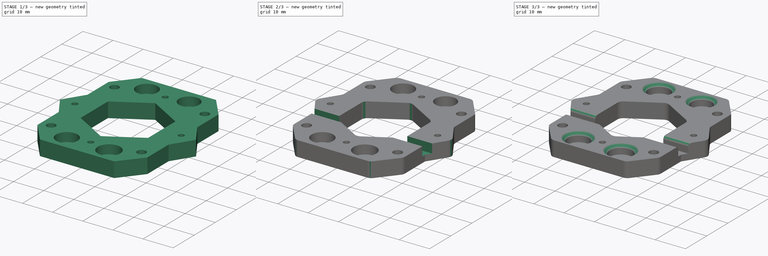
[diagram: build sequence overview — one tinted view per stage of 3, left to right]
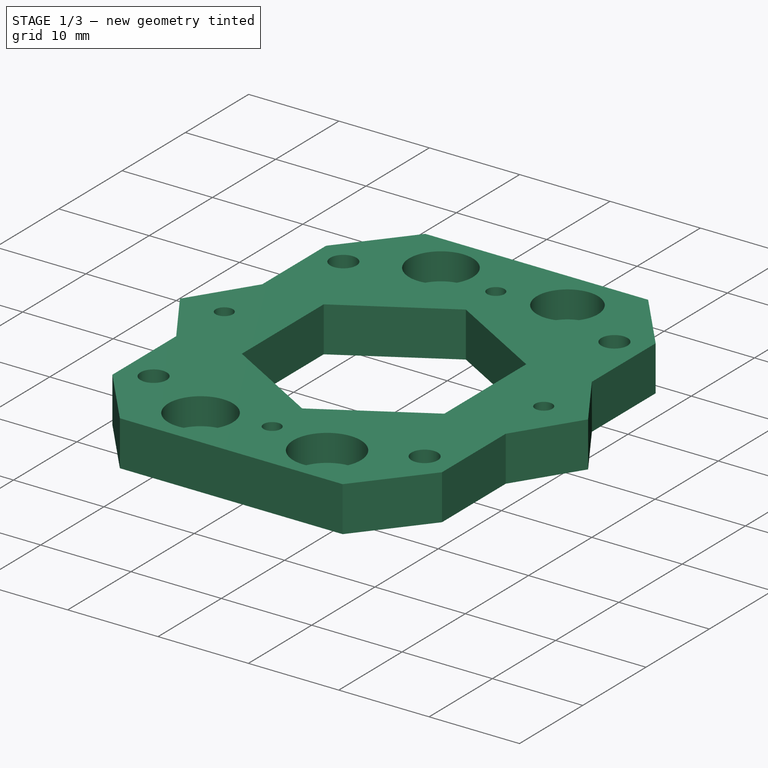
[diagram: stage 1 of 3 — iso view after this stage's code; geometry added in this stage tinted green]
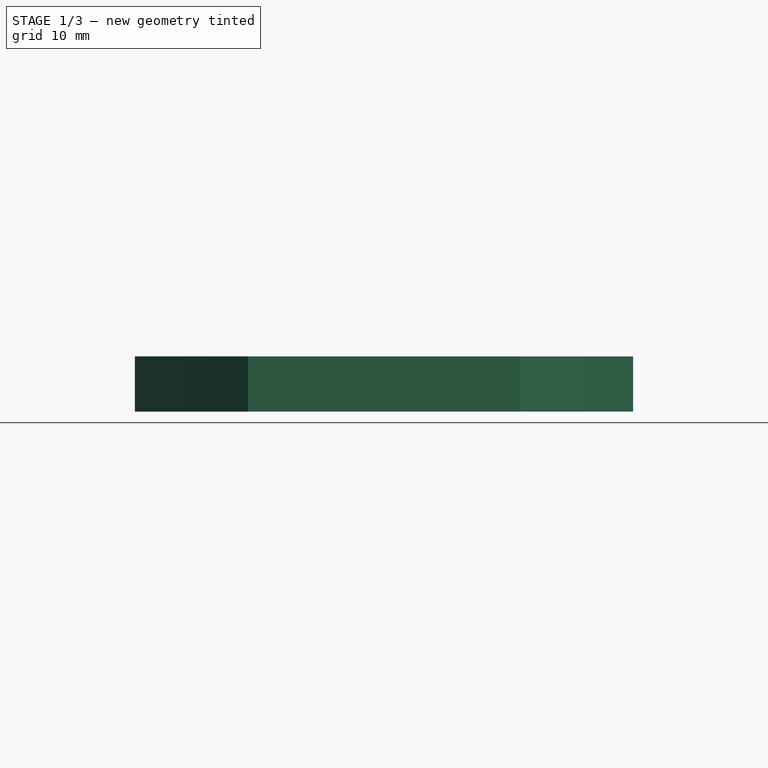
[diagram: stage 1 of 3 — front view after this stage's code; geometry added in this stage tinted green]
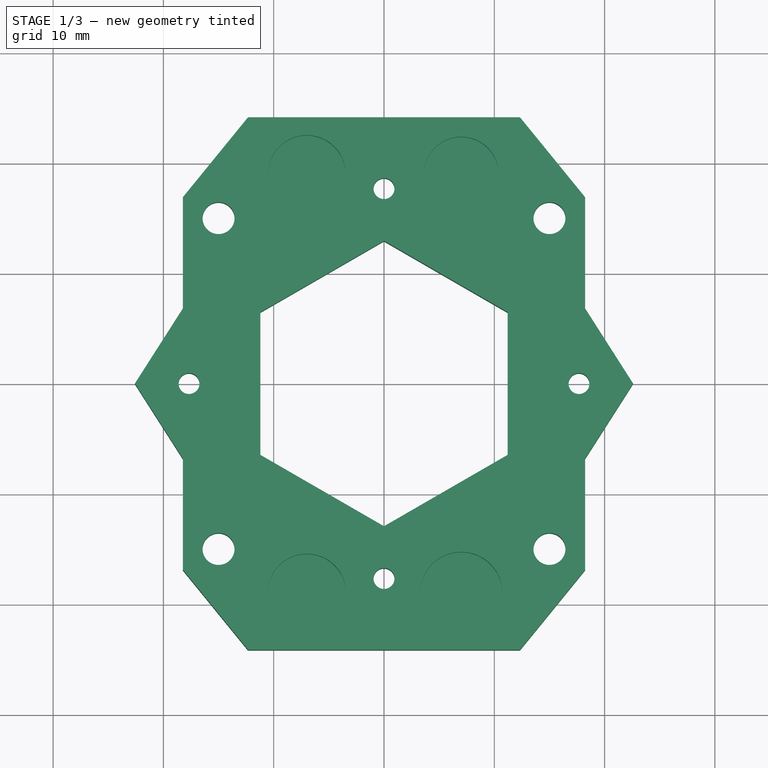
[diagram: stage 1 of 3 — top view after this stage's code; geometry added in this stage tinted green]
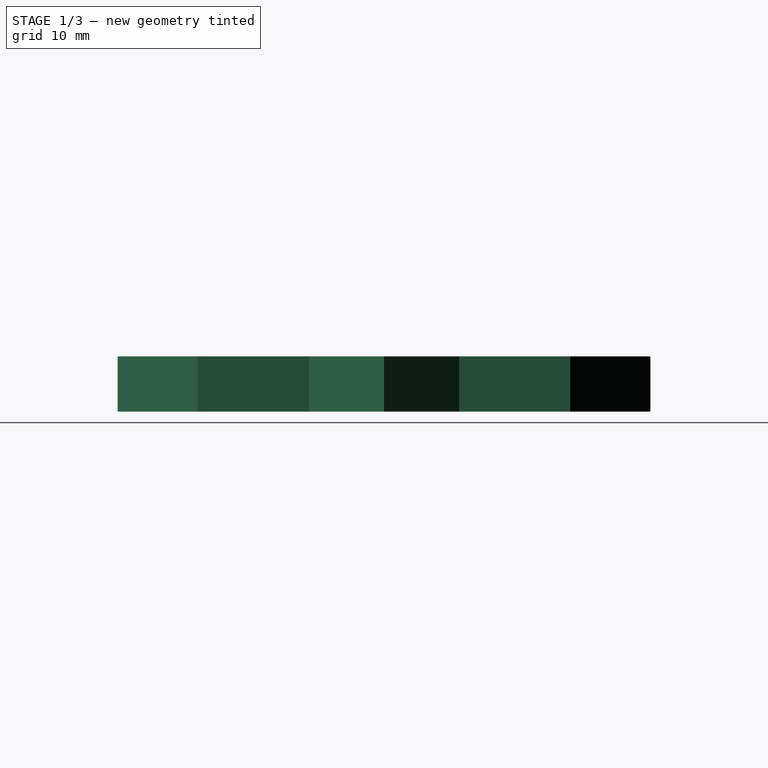
[diagram: stage 1 of 3 — right view after this stage's code; geometry added in this stage tinted green]
FCSTD DOCUMENT  (FreeCAD 0.19R24267 +99 (Git))
Label: 飞控30转20
License: All rights reserved
LicenseURL: http://en.wikipedia.org/wiki/All_rights_reserved
objects: Sketcher::SketchObject×3, PartDesign::Fillet×3, PartDesign::Pocket×2, Image::ImagePlane×1, PartDesign::Pad×1, PartDesign::Chamfer×1, PartDesign::Body×1
note: 18 computed .brp shape members not serialized (recipe doc carries the construction recipe); baked Part::Feature solids carry a one-line shape summary decoded from their .brp

FEATURE [Sketcher::SketchObject] Sketch
  FullyConstrained = false
  MapMode = 5
  Support = -> [XY_Plane]
  sketch-geometry (39):
    g0: LineSegment StartX=-15 StartY=15 StartZ=0 EndX=15 EndY=15 EndZ=0
    g1: LineSegment StartX=15 StartY=15 StartZ=0 EndX=15 EndY=-15 EndZ=0
    g2: LineSegment StartX=15 StartY=-15 StartZ=0 EndX=-15 EndY=-15 EndZ=0
    g3: LineSegment StartX=-15 StartY=-15 StartZ=0 EndX=-15 EndY=15 EndZ=0
    g4: LineSegment StartX=0 StartY=17.6777 StartZ=0 EndX=-17.6777 EndY=0 EndZ=0
    g5: LineSegment StartX=-17.6777 StartY=0 StartZ=0 EndX=0 EndY=-17.6777 EndZ=0
    g6: LineSegment StartX=17.6777 StartY=0 StartZ=0 EndX=0 EndY=-17.6777 EndZ=0
    g7: LineSegment StartX=0 StartY=17.6777 StartZ=0 EndX=17.6777 EndY=0 EndZ=0
    g8: Circle CenterX=-15 CenterY=15 CenterZ=0 NormalX=0 NormalY=0 NormalZ=1 AngleXU=0 Radius=1.45
    g9: Circle CenterX=0 CenterY=17.6777 CenterZ=0 NormalX=0 NormalY=0 NormalZ=1 AngleXU=0 Radius=0.95
    g10: Circle CenterX=15 CenterY=15 CenterZ=0 NormalX=0 NormalY=0 NormalZ=1 AngleXU=0 Radius=1.45
    g11: Circle CenterX=15 CenterY=-15 CenterZ=0 NormalX=0 NormalY=0 NormalZ=1 AngleXU=0 Radius=1.45
    g12: Circle CenterX=-15 CenterY=-15 CenterZ=0 NormalX=0 NormalY=0 NormalZ=1 AngleXU=0 Radius=1.45
    g13: Circle CenterX=0 CenterY=-17.6777 CenterZ=0 NormalX=0 NormalY=0 NormalZ=1 AngleXU=0 Radius=0.95
    g14: Circle CenterX=-17.6777 CenterY=0 CenterZ=0 NormalX=0 NormalY=0 NormalZ=1 AngleXU=0 Radius=0.95
    g15: Circle CenterX=17.6777 CenterY=0 CenterZ=0 NormalX=0 NormalY=0 NormalZ=1 AngleXU=0 Radius=0.95
    g16: LineSegment StartX=-22.5862 StartY=0 StartZ=0 EndX=-18.2399 EndY=6.8041 EndZ=0
    g17: LineSegment StartX=-18.2399 StartY=6.8041 StartZ=0 EndX=-18.2399 EndY=16.8877 EndZ=0
    g18: LineSegment StartX=-18.2399 StartY=16.8877 StartZ=0 EndX=-12.3288 EndY=24.1434 EndZ=0
    g19: LineSegment StartX=-12.3288 StartY=24.1434 StartZ=0 EndX=0 EndY=24.1434 EndZ=0
    g20: LineSegment StartX=12.3288 StartY=24.1434 StartZ=0 EndX=0 EndY=24.1434 EndZ=0
    g21: LineSegment StartX=18.2399 StartY=16.8877 StartZ=0 EndX=12.3288 EndY=24.1434 EndZ=0
    g22: LineSegment StartX=18.2399 StartY=6.8041 StartZ=0 EndX=18.2399 EndY=16.8877 EndZ=0
    g23: LineSegment StartX=22.5862 StartY=0 StartZ=0 EndX=18.2399 EndY=6.8041 EndZ=0
    g24: LineSegment StartX=-22.5862 StartY=0 StartZ=0 EndX=-18.2399 EndY=-6.8041 EndZ=0
    g25: LineSegment StartX=-18.2399 StartY=-6.8041 StartZ=0 EndX=-18.2399 EndY=-16.8877 EndZ=0
    g26: LineSegment StartX=-18.2399 StartY=-16.8877 StartZ=0 EndX=-12.3288 EndY=-24.1483 EndZ=0
    g27: LineSegment StartX=-12.3288 StartY=-24.1483 StartZ=0 EndX=0.02983 EndY=-24.1483 EndZ=0
    g28: LineSegment StartX=12.3288 StartY=-24.1483 StartZ=0 EndX=0.02983 EndY=-24.1483 EndZ=0
    g29: LineSegment StartX=18.2399 StartY=-16.8877 StartZ=0 EndX=12.3288 EndY=-24.1483 EndZ=0
    g30: LineSegment StartX=18.2399 StartY=-6.8041 StartZ=0 EndX=18.2399 EndY=-16.8877 EndZ=0
    g31: LineSegment StartX=22.5862 StartY=0 StartZ=0 EndX=18.2399 EndY=-6.8041 EndZ=0
    g32: LineSegment StartX=11.2072 StartY=-6.47048 StartZ=0 EndX=11.2072 EndY=6.47048 EndZ=0
    g33: LineSegment StartX=11.2072 StartY=6.47048 StartZ=0 EndX=-2.13e-14 EndY=12.941 EndZ=0
    g34: LineSegment StartX=-2.13e-14 StartY=12.941 StartZ=0 EndX=-11.2072 EndY=6.47048 EndZ=0
    g35: LineSegment StartX=-11.2072 StartY=6.47048 StartZ=0 EndX=-11.2072 EndY=-6.47048 EndZ=0
    g36: LineSegment StartX=-11.2072 StartY=-6.47048 StartZ=0 EndX=1.95e-14 EndY=-12.941 EndZ=0
    g37: LineSegment StartX=1.95e-14 StartY=-12.941 StartZ=0 EndX=11.2072 EndY=-6.47048 EndZ=0
    g38: Circle CenterX=0 CenterY=0 CenterZ=0 NormalX=0 NormalY=0 NormalZ=1 AngleXU=0 Radius=12.941
  constraints (79):
    c: Coincident(g0,g1)
    c: Coincident(g1,g2)
    c: Coincident(g2,g3)
    c: Coincident(g3,g0)
    c: Horizontal(g0)
    c: Horizontal(g2)
    c: Vertical(g1)
    c: Vertical(g3)
    c: Equal(g0,g3)
    c: DistanceX(g-2,g0) = -15
    c: DistanceY(g-1,g0) = 15
    c: Distance(g0) = 30
    c: PointOnObject(g4,g-2)
    c: Coincident(g5,g4)
    c: PointOnObject(g5,g-2)
    c: PointOnObject(g6,g-1)
    c: Coincident(g6,g5)
    c: Coincident(g7,g4)
    c: Coincident(g7,g6)
    c: PointOnObject(g4,g-1)
    c: Perpendicular(g6,g7)
    c: Distance(g7) = 25
    c: Equal(g4,g7)
    c: Equal(g7,g5)
    c: Coincident(g8,g0)
    c: Coincident(g9,g4)
    c: Coincident(g10,g0)
    c: Coincident(g11,g1)
    c: Coincident(g12,g2)
    c: Coincident(g13,g5)
    c: Coincident(g14,g4)
    c: Coincident(g15,g6)
    c: Equal(g8,g10)
    c: Equal(g10,g12)
    c: Equal(g12,g11)
    c: Diameter(g8) = 2.9
    c: Equal(g9,g14)
    c: Equal(g14,g15)
    c: Equal(g15,g13)
    c: Diameter(g13) = 1.9
    c: PointOnObject(g16,g-1)
    c: Coincident(g16,g17)
    c: Vertical(g17)
    c: Coincident(g17,g18)
    c: Coincident(g18,g19)
    c: PointOnObject(g19,g-2)
    c: Horizontal(g19)
    c: Coincident(g23,g22)
    c: Vertical(g22)
    c: Coincident(g22,g21)
    c: Coincident(g21,g20)
    c: Horizontal(g20)
    c: Coincident(g24,g25)
    c: Vertical(g25)
    c: Coincident(g25,g26)
    c: Coincident(g26,g27)
    c: Horizontal(g27)
    c: Coincident(g31,g30)
    c: Vertical(g30)
    c: Coincident(g30,g29)
    c: Coincident(g29,g28)
    c: Horizontal(g28)
    c: Coincident(g32,g33)
    c: Coincident(g33,g34)
    c: Coincident(g34,g35)
    c: Coincident(g35,g36)
    c: Coincident(g36,g37)
    c: Coincident(g37,g32)
    c: Equal(g32, g33-g37) x5
    c: PointOnObject(g32,g38)
    c: PointOnObject(g33,g38)
    c: PointOnObject(g34,g38)
    c: PointOnObject(g35,g38)
    c: PointOnObject(g36,g38)
    c: PointOnObject(g37,g38)
    c: PointOnObject(g37,g6)
    c: Parallel(g32,g-2)
    c: Coincident(g19,g20)
    c: Coincident(g27,g28)
FEATURE [Image::ImagePlane] ImagePlane
  Placement = pos=(-2.7,8.5,0) rot=(0,0,-1;0.059341rad)
  XSize = 138.448
  YSize = 184.779
FEATURE [PartDesign::Pad] Pad
  Direction = (1,1,1)
  Length = 5
  Length2 = 100
  Profile = -> Sketch
  Type = 0
FEATURE [Sketcher::SketchObject] Sketch001
  FullyConstrained = false
  MapMode = 5
  Placement = pos=(0,0,5) rot=(0,0,1;0rad)
  Support = -> [Pad]
  sketch-geometry (6):
    g0: Circle CenterX=-7 CenterY=-19 CenterZ=0 NormalX=0 NormalY=0 NormalZ=1 AngleXU=0 Radius=3.56203
    g1: Circle CenterX=7 CenterY=-19 CenterZ=0 NormalX=0 NormalY=0 NormalZ=1 AngleXU=0 Radius=3.73192
    g2: Circle CenterX=-7 CenterY=19 CenterZ=0 NormalX=0 NormalY=0 NormalZ=1 AngleXU=0 Radius=3.52027
    g3: Circle CenterX=7 CenterY=19 CenterZ=0 NormalX=0 NormalY=0 NormalZ=1 AngleXU=0 Radius=3.38043
    g4: LineSegment StartX=-7 StartY=19 StartZ=0 EndX=0 EndY=0 EndZ=0
    g5: LineSegment StartX=0 StartY=0 StartZ=0 EndX=7 EndY=-19 EndZ=0
  constraints (12):
    c: Distance(g2,g0) = 38
    c: Distance(g1,g3) = 38
    c: Distance(g2,g3) = 14
    c: Distance(g0,g1) = 14
    c: Horizontal(g2,g3)
    c: Vertical(g3,g1)
    c: Coincident(g4,g2)
    c: Coincident(g4,g-1)
    c: Coincident(g5,g-1)
    c: Coincident(g5,g1)
    c: Equal(g5,g4)
    c: Parallel(g4,g5)
FEATURE [PartDesign::Pocket] Pocket
  BaseFeature = -> Pad
  Length = 3
  Length2 = 100
  Profile = -> Sketch001
  Type = 0
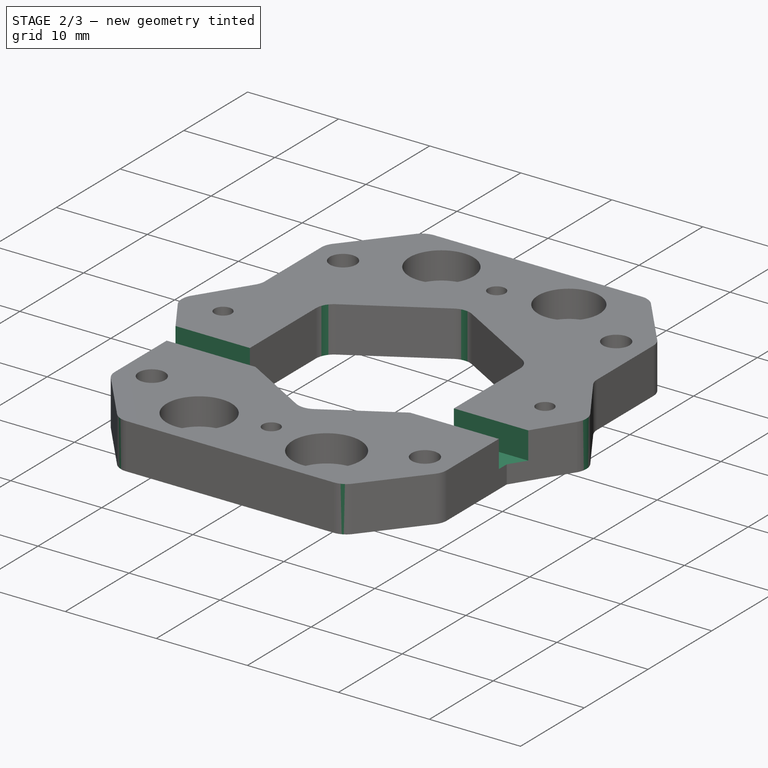
[diagram: stage 2 of 3 — iso view after this stage's code; geometry added in this stage tinted green]
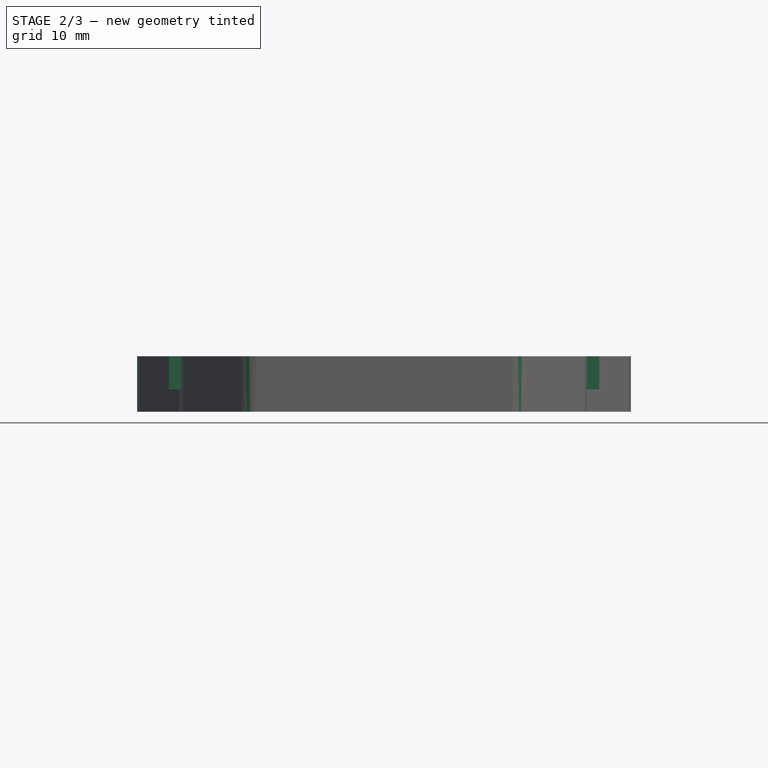
[diagram: stage 2 of 3 — front view after this stage's code; geometry added in this stage tinted green]
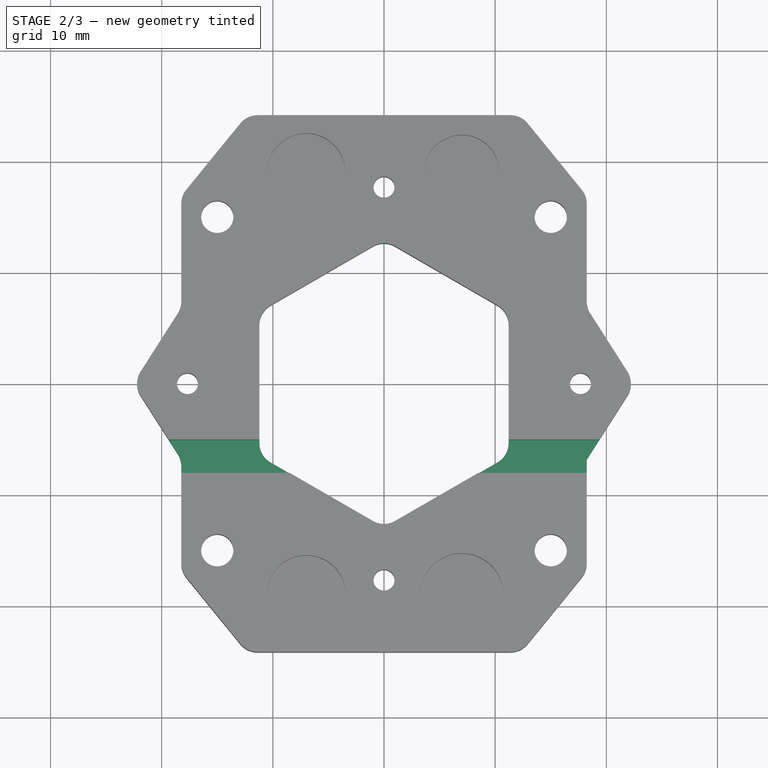
[diagram: stage 2 of 3 — top view after this stage's code; geometry added in this stage tinted green]
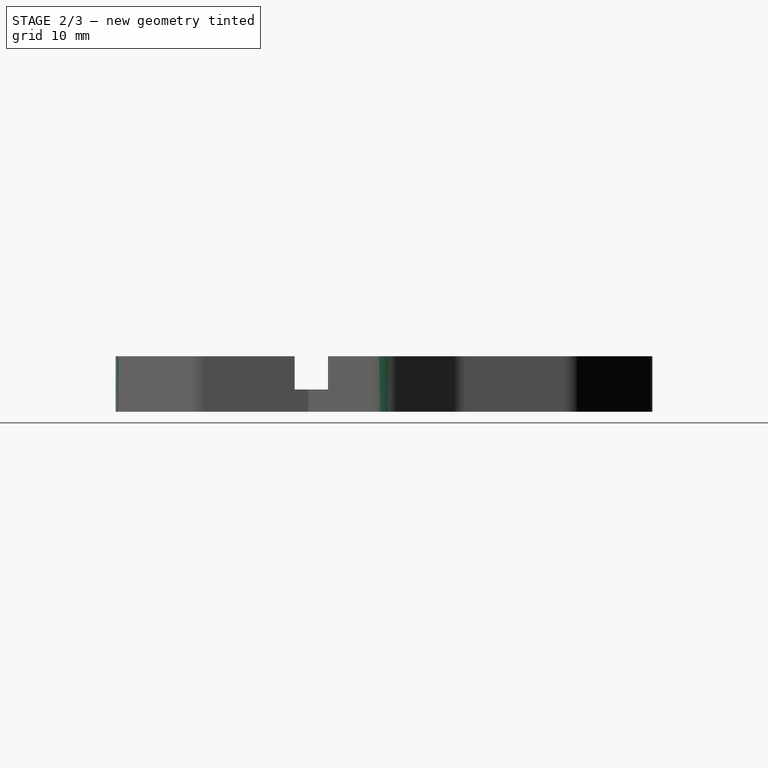
[diagram: stage 2 of 3 — right view after this stage's code; geometry added in this stage tinted green]
FEATURE [Sketcher::SketchObject] Sketch002
  FullyConstrained = false
  MapMode = 5
  Placement = pos=(0,0,5) rot=(0,0,1;0rad)
  Support = -> [Pocket]
  sketch-geometry (4):
    g0: LineSegment StartX=-23.1579 StartY=-5.04127 StartZ=0 EndX=23.5584 EndY=-5.04127 EndZ=0
    g1: LineSegment StartX=23.5584 StartY=-5.04127 StartZ=0 EndX=23.5584 EndY=-8.04127 EndZ=0
    g2: LineSegment StartX=23.5584 StartY=-8.04127 StartZ=0 EndX=-23.1579 EndY=-8.04127 EndZ=0
    g3: LineSegment StartX=-23.1579 StartY=-8.04127 StartZ=0 EndX=-23.1579 EndY=-5.04127 EndZ=0
  constraints (9):
    c: Coincident(g0,g1)
    c: Coincident(g1,g2)
    c: Coincident(g2,g3)
    c: Coincident(g3,g0)
    c: Horizontal(g0)
    c: Horizontal(g2)
    c: Vertical(g1)
    c: Vertical(g3)
    c: Distance(g3) = 3
FEATURE [PartDesign::Pocket] Pocket001
  BaseFeature = -> Pocket
  Length = 3
  Length2 = 100
  Profile = -> Sketch002
  Type = 0
FEATURE [PartDesign::Fillet] Fillet
  Base = -> Pocket001 [Edge74,Edge1,Edge78,Edge82,Edge86,Edge60,Edge10,Edge2,Edge6,Edge69,Edge71,Edge72,Edge73]
  BaseFeature = -> Pocket001
  Radius = 2
  SupportTransform = false
FEATURE [PartDesign::Fillet] Fillet001
  Base = -> Fillet [Edge126,Edge132,Edge123,Edge127,Edge128,Edge129]
  BaseFeature = -> Fillet
  Radius = 2
  SupportTransform = false
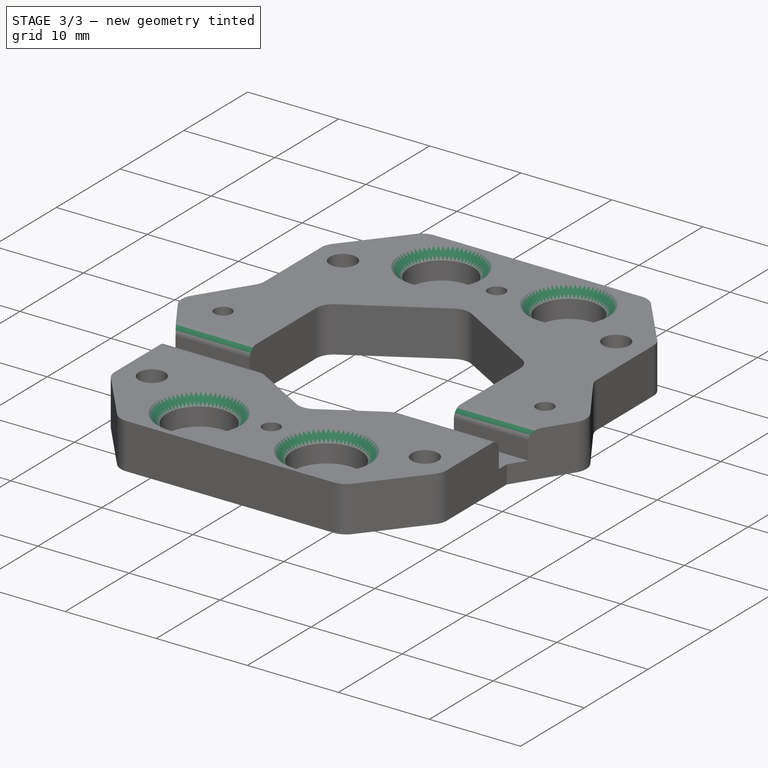
[diagram: stage 3 of 3 — iso view after this stage's code; geometry added in this stage tinted green]
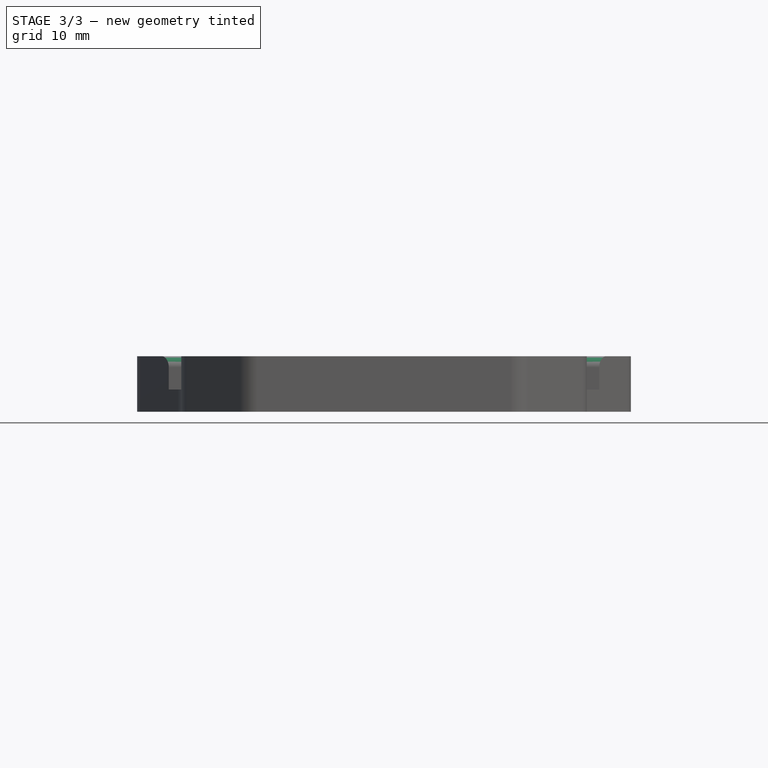
[diagram: stage 3 of 3 — front view after this stage's code; geometry added in this stage tinted green]
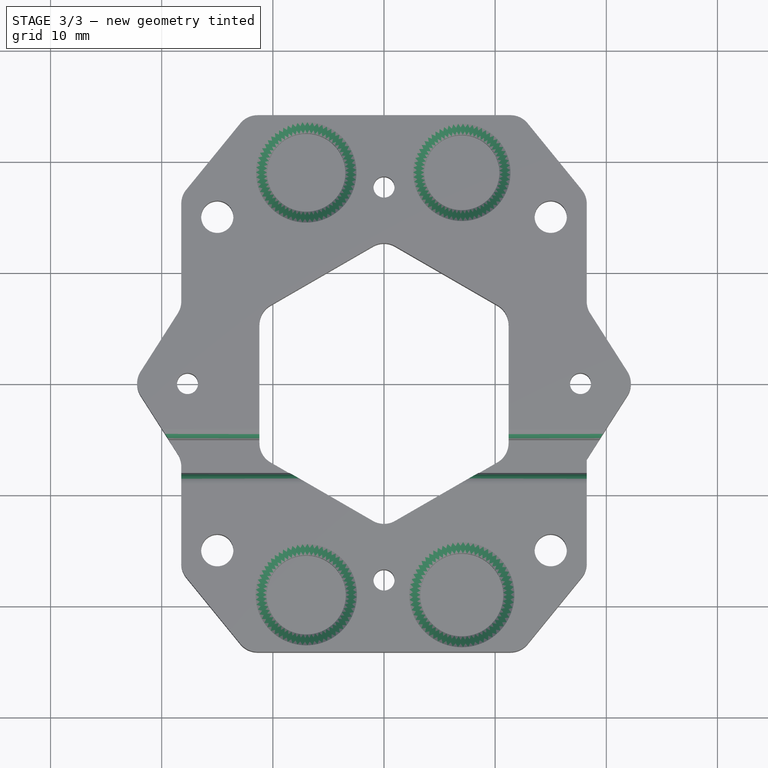
[diagram: stage 3 of 3 — top view after this stage's code; geometry added in this stage tinted green]
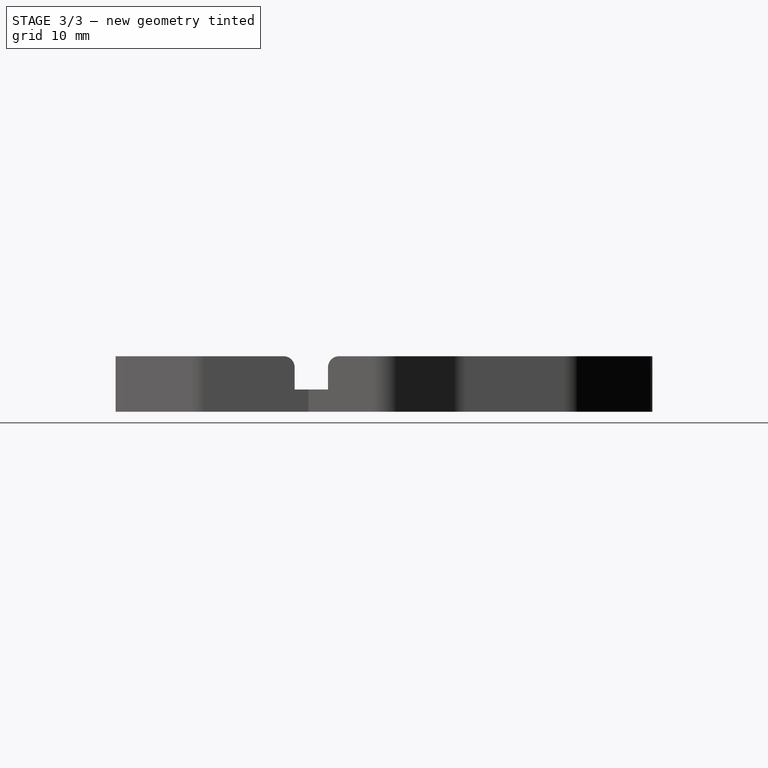
[diagram: stage 3 of 3 — right view after this stage's code; geometry added in this stage tinted green]
FEATURE [PartDesign::Fillet] Fillet002
  Base = -> Fillet001 [Edge167,Edge171,Edge166,Edge170]
  BaseFeature = -> Fillet001
  Radius = 1
  SupportTransform = false
FEATURE [PartDesign::Chamfer] Chamfer
  Angle = 45
  Base = -> Fillet002 [Edge36,Edge39,Edge189,Edge190]
  BaseFeature = -> Fillet002
  ChamferType = 0
  FlipDirection = false
  Size = 1
  Size2 = 1
  SupportTransform = false
FEATURE [PartDesign::Body] Body
  Group = -> [Sketch,Pad,Sketch001,Pocket,Sketch002,Pocket001,Fillet,Fillet001,Fillet002,Chamfer]
  Origin = -> Origin
  Tip = -> Chamfer
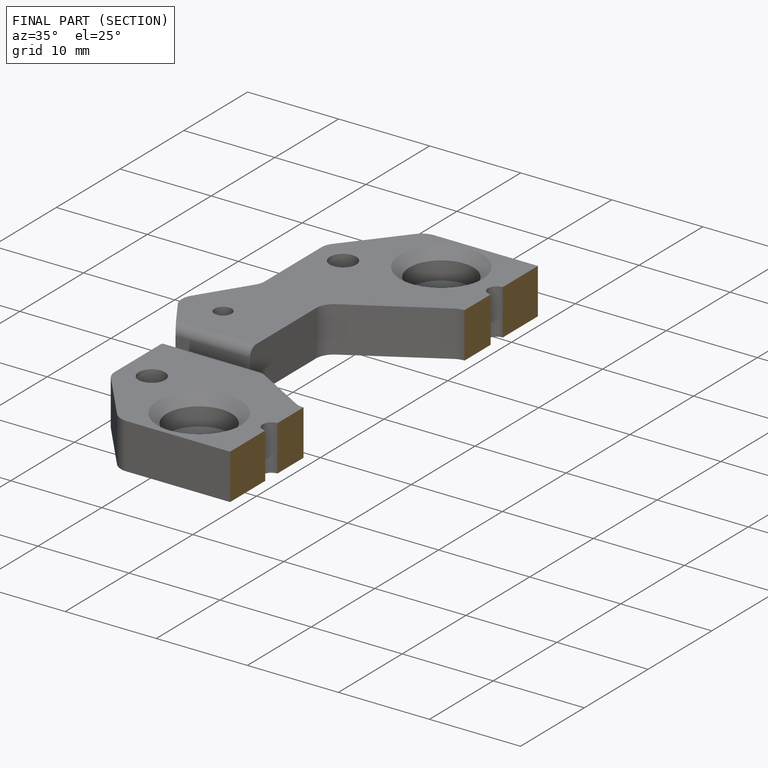
[diagram: finished part — half-section view (interior)]
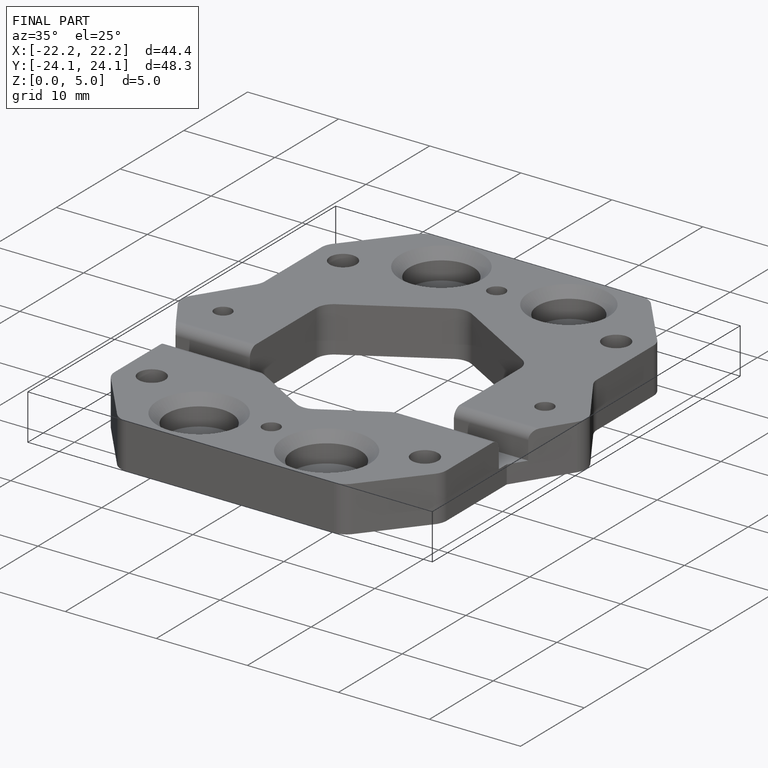
[diagram: finished part — iso view with bounding-box wireframe]
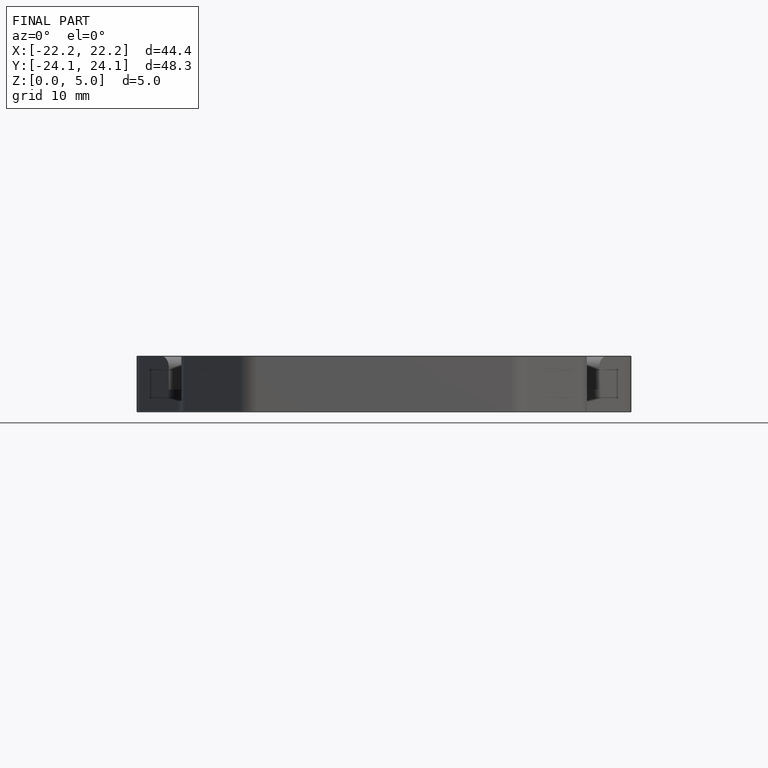
[diagram: finished part — front view with bounding-box wireframe]
